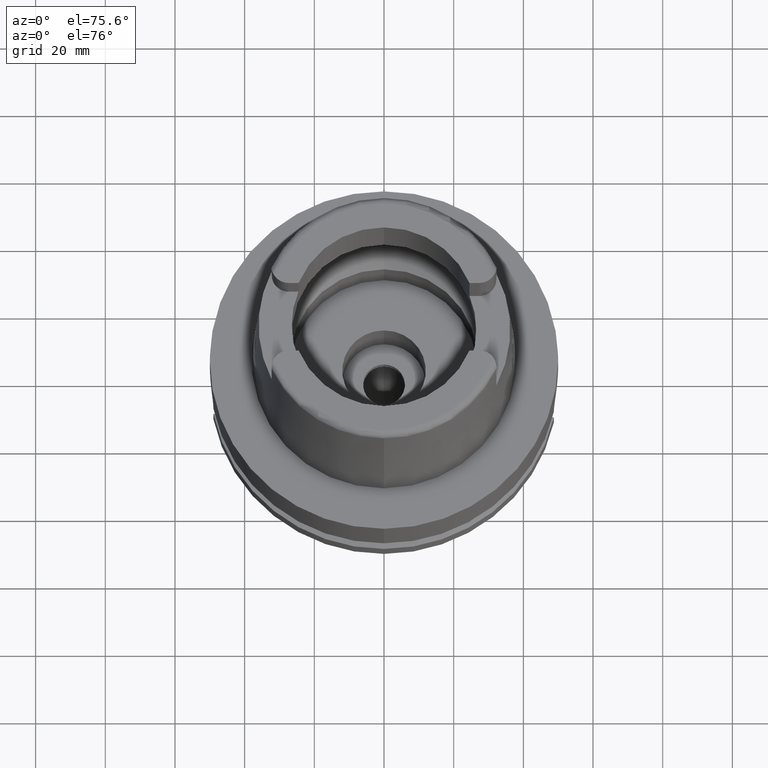
[diagram: clean part render]
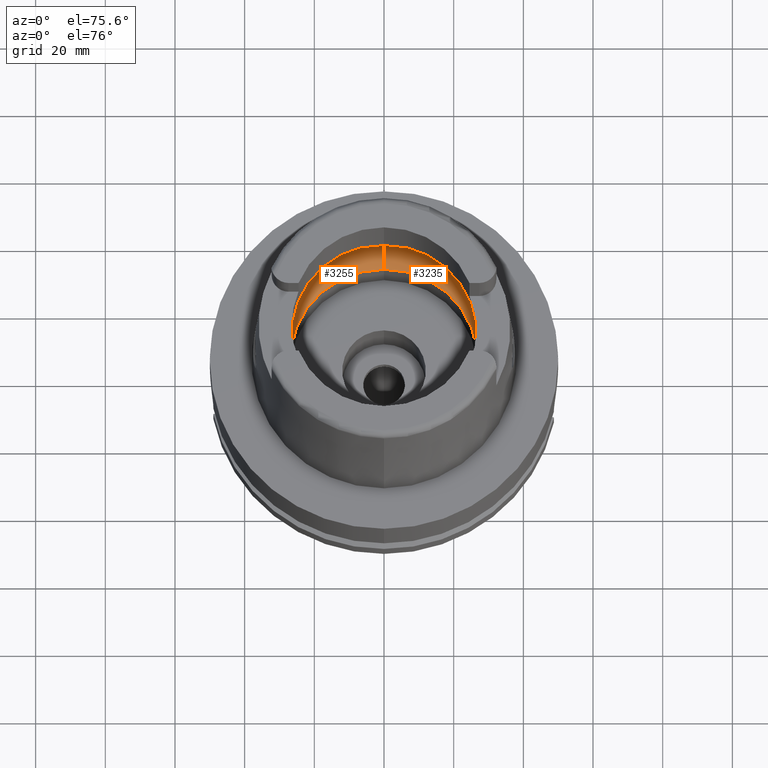
[diagram: same view with one multi-face feature highlighted, each face labeled with its STEP entity id]
A machine part, auxiliary view. The highlighted faces form ONE feature: a constant-radius fillet chain: 2 tangent blend faces with common blend radius 12 mm. The faces share edges in the B-rep.
Their STEP definitions:
[1] entity #3235 (Torus):
#678=CARTESIAN_POINT('',(3.140918884336E1,-2.390158196044E0,9.496624327026E0));
#735=CARTESIAN_POINT('',(3.148971910754E1,0.E0,9.E0));
#736=CARTESIAN_POINT('',(3.148971910754E1,-2.740577972479E-1,9.E0));
#737=CARTESIAN_POINT('',(3.148416873908E1,-8.215758563206E-1,9.037592770478E0));
#738=CARTESIAN_POINT('',(3.145842584810E1,-1.626284014638E0,9.205229300853E0));
#739=CARTESIAN_POINT('',(3.142817037895E1,-2.140720883960E0,9.388291792359E0));
#740=CARTESIAN_POINT('',(3.140918884336E1,-2.390158196044E0,9.496624327026E0));
#745=CARTESIAN_POINT('',(0.E0,1.340946904995E-14,9.496624327026E0));
#746=DIRECTION('',(0.E0,0.E0,-1.E0));
#747=DIRECTION('',(9.971171061384E-1,-7.587803796965E-2,0.E0));
#748=AXIS2_PLACEMENT_3D('',#745,#746,#747);
#753=CARTESIAN_POINT('',(0.E0,1.340946904995E-14,4.993178413034E-2));
#754=DIRECTION('',(0.E0,0.E0,1.E0));
#755=DIRECTION('',(0.E0,-1.E0,0.E0));
#756=AXIS2_PLACEMENT_3D('',#753,#754,#755);
#761=CARTESIAN_POINT('',(0.E0,1.95E1,9.496624327026E0));
#762=DIRECTION('',(1.E0,0.E0,0.E0));
#763=DIRECTION('',(0.E0,6.166666666667E-1,-7.872243785746E-1));
#764=AXIS2_PLACEMENT_3D('',#761,#762,#763);
#769=CARTESIAN_POINT('',(0.E0,1.340946904995E-14,9.496624327026E0));
#770=DIRECTION('',(0.E0,0.E0,-1.E0));
#771=DIRECTION('',(0.E0,1.E0,0.E0));
#772=AXIS2_PLACEMENT_3D('',#769,#770,#771);
#777=CARTESIAN_POINT('',(3.140918884336E1,2.390158196044E0,9.496624327026E0));
#778=CARTESIAN_POINT('',(3.142817011594E1,2.140724340245E0,9.388293293450E0));
#779=CARTESIAN_POINT('',(3.145842551910E1,1.626292447614E0,9.205231383659E0));
#780=CARTESIAN_POINT('',(3.148416888237E1,8.215719155563E-1,9.037591858779E0));
#781=CARTESIAN_POINT('',(3.148971910754E1,2.740560076334E-1,9.E0));
#782=CARTESIAN_POINT('',(3.148971910754E1,0.E0,9.E0));
#823=CARTESIAN_POINT('',(0.E0,-1.95E1,9.496624327026E0));
#824=DIRECTION('',(-1.E0,0.E0,0.E0));
#825=DIRECTION('',(0.E0,-6.166666666667E-1,-7.872243785746E-1));
#826=AXIS2_PLACEMENT_3D('',#823,#824,#825);
#2650=CARTESIAN_POINT('',(0.E0,2.69E1,4.993178413030E-2));
#2651=VERTEX_POINT('',#2650);
#2652=CARTESIAN_POINT('',(0.E0,-2.69E1,4.993178413034E-2));
#2653=VERTEX_POINT('',#2652);
#2657=CARTESIAN_POINT('',(0.E0,3.15E1,9.496624327026E0));
#2658=VERTEX_POINT('',#2657);
#2659=CARTESIAN_POINT('',(0.E0,-3.15E1,9.496624327026E0));
#2660=VERTEX_POINT('',#2659);
#2663=VERTEX_POINT('',#678);
#2664=VERTEX_POINT('',#735);
#2666=VERTEX_POINT('',#777);
#3218=CARTESIAN_POINT('',(0.E0,1.340946904995E-14,9.496624327026E0));
#3219=DIRECTION('',(0.E0,0.E0,-1.E0));
#3220=DIRECTION('',(0.E0,-1.E0,0.E0));
#3221=AXIS2_PLACEMENT_3D('',#3218,#3219,#3220);
#3222=TOROIDAL_SURFACE('',#3221,1.95E1,1.2E1);
#3223=ORIENTED_EDGE('',*,*,#3197,.T.);
#3224=ORIENTED_EDGE('',*,*,#3183,.T.);
#3226=ORIENTED_EDGE('',*,*,#3225,.F.);
#3228=ORIENTED_EDGE('',*,*,#3227,.T.);
#3230=ORIENTED_EDGE('',*,*,#3229,.T.);
#3231=ORIENTED_EDGE('',*,*,#3176,.T.);
#3232=ORIENTED_EDGE('',*,*,#3211,.T.);
#3233=EDGE_LOOP('',(#3223,#3224,#3226,#3228,#3230,#3231,#3232));
#3234=FACE_OUTER_BOUND('',#3233,.F.);
#741=B_SPLINE_CURVE_WITH_KNOTS('',3,(#735,#736,#737,#738,#739,#740),
.UNSPECIFIED.,.F.,.F.,(4,1,1,4),(0.E0,3.333333333333E-1,6.666666666667E-1,1.E0),
.UNSPECIFIED.);
#749=CIRCLE('',#748,3.15E1);
#757=CIRCLE('',#756,2.69E1);
#765=CIRCLE('',#764,1.2E1);
#773=CIRCLE('',#772,3.15E1);
#783=B_SPLINE_CURVE_WITH_KNOTS('',3,(#777,#778,#779,#780,#781,#782),
.UNSPECIFIED.,.F.,.F.,(4,1,1,4),(0.E0,3.333333333333E-1,6.666666666667E-1,1.E0),
.UNSPECIFIED.);
#827=CIRCLE('',#826,1.2E1);
#3176=EDGE_CURVE('',#2658,#2666,#773,.T.);
#3183=EDGE_CURVE('',#2663,#2660,#749,.T.);
#3197=EDGE_CURVE('',#2664,#2663,#741,.T.);
#3211=EDGE_CURVE('',#2666,#2664,#783,.T.);
#3225=EDGE_CURVE('',#2653,#2660,#827,.T.);
#3227=EDGE_CURVE('',#2653,#2651,#757,.T.);
#3229=EDGE_CURVE('',#2651,#2658,#765,.T.);
#3235=ADVANCED_FACE('',(#3234),#3222,.F.);
[2] entity #3255 (Torus):
#761=CARTESIAN_POINT('',(0.E0,1.95E1,9.496624327026E0));
#762=DIRECTION('',(1.E0,0.E0,0.E0));
#763=DIRECTION('',(0.E0,6.166666666667E-1,-7.872243785746E-1));
#764=AXIS2_PLACEMENT_3D('',#761,#762,#763);
#787=CARTESIAN_POINT('',(-3.140918884336E1,-2.390158196044E0,9.496624327026E0));
#788=CARTESIAN_POINT('',(-3.142817042433E1,-2.140720287608E0,9.388291533359E0));
#789=CARTESIAN_POINT('',(-3.145842591615E1,-1.626282554712E0,9.205228870666E0));
#790=CARTESIAN_POINT('',(-3.148416875896E1,-8.215746298374E-1,
9.037592635979E0));
#791=CARTESIAN_POINT('',(-3.148971910754E1,-2.740572723320E-1,9.E0));
#792=CARTESIAN_POINT('',(-3.148971910754E1,0.E0,9.E0));
#797=CARTESIAN_POINT('',(-3.148971910754E1,0.E0,9.E0));
#798=CARTESIAN_POINT('',(-3.148971910754E1,2.740565459395E-1,9.E0));
#799=CARTESIAN_POINT('',(-3.148416886187E1,8.215731729151E-1,9.037591997483E0));
#800=CARTESIAN_POINT('',(-3.145842545026E1,1.626293921866E0,9.205231818757E0));
#801=CARTESIAN_POINT('',(-3.142817007011E1,2.140724942431E0,9.388293554984E0));
#802=CARTESIAN_POINT('',(-3.140918884336E1,2.390158196044E0,9.496624327026E0));
#807=CARTESIAN_POINT('',(0.E0,1.340946904995E-14,9.496624327026E0));
#808=DIRECTION('',(0.E0,0.E0,-1.E0));
#809=DIRECTION('',(-9.971171061384E-1,7.587803796965E-2,0.E0));
#810=AXIS2_PLACEMENT_3D('',#807,#808,#809);
#815=CARTESIAN_POINT('',(0.E0,1.340946904995E-14,4.993178413034E-2));
#816=DIRECTION('',(0.E0,0.E0,1.E0));
#817=DIRECTION('',(0.E0,1.E0,0.E0));
#818=AXIS2_PLACEMENT_3D('',#815,#816,#817);
#823=CARTESIAN_POINT('',(0.E0,-1.95E1,9.496624327026E0));
#824=DIRECTION('',(-1.E0,0.E0,0.E0));
#825=DIRECTION('',(0.E0,-6.166666666667E-1,-7.872243785746E-1));
#826=AXIS2_PLACEMENT_3D('',#823,#824,#825);
#831=CARTESIAN_POINT('',(0.E0,1.340946904995E-14,9.496624327026E0));
#832=DIRECTION('',(0.E0,0.E0,-1.E0));
#833=DIRECTION('',(0.E0,-1.E0,0.E0));
#834=AXIS2_PLACEMENT_3D('',#831,#832,#833);
#2650=CARTESIAN_POINT('',(0.E0,2.69E1,4.993178413030E-2));
#2651=VERTEX_POINT('',#2650);
#2652=CARTESIAN_POINT('',(0.E0,-2.69E1,4.993178413034E-2));
#2653=VERTEX_POINT('',#2652);
#2654=VERTEX_POINT('',#787);
#2655=VERTEX_POINT('',#792);
#2656=VERTEX_POINT('',#802);
#2657=CARTESIAN_POINT('',(0.E0,3.15E1,9.496624327026E0));
#2658=VERTEX_POINT('',#2657);
#2659=CARTESIAN_POINT('',(0.E0,-3.15E1,9.496624327026E0));
#2660=VERTEX_POINT('',#2659);
#3236=CARTESIAN_POINT('',(0.E0,1.340946904995E-14,9.496624327026E0));
#3237=DIRECTION('',(0.E0,0.E0,-1.E0));
#3238=DIRECTION('',(0.E0,-1.E0,0.E0));
#3239=AXIS2_PLACEMENT_3D('',#3236,#3237,#3238);
#3240=TOROIDAL_SURFACE('',#3239,1.95E1,1.2E1);
#3242=ORIENTED_EDGE('',*,*,#3241,.T.);
#3244=ORIENTED_EDGE('',*,*,#3243,.T.);
#3246=ORIENTED_EDGE('',*,*,#3245,.T.);
#3247=ORIENTED_EDGE('',*,*,#3229,.F.);
#3249=ORIENTED_EDGE('',*,*,#3248,.T.);
#3250=ORIENTED_EDGE('',*,*,#3225,.T.);
#3252=ORIENTED_EDGE('',*,*,#3251,.T.);
#3253=EDGE_LOOP('',(#3242,#3244,#3246,#3247,#3249,#3250,#3252));
#3254=FACE_OUTER_BOUND('',#3253,.F.);
#765=CIRCLE('',#764,1.2E1);
#793=B_SPLINE_CURVE_WITH_KNOTS('',3,(#787,#788,#789,#790,#791,#792),
.UNSPECIFIED.,.F.,.F.,(4,1,1,4),(0.E0,3.333333333333E-1,6.666666666667E-1,1.E0),
.UNSPECIFIED.);
#803=B_SPLINE_CURVE_WITH_KNOTS('',3,(#797,#798,#799,#800,#801,#802),
.UNSPECIFIED.,.F.,.F.,(4,1,1,4),(0.E0,3.333333333333E-1,6.666666666667E-1,1.E0),
.UNSPECIFIED.);
#811=CIRCLE('',#810,3.15E1);
#819=CIRCLE('',#818,2.69E1);
#827=CIRCLE('',#826,1.2E1);
#835=CIRCLE('',#834,3.15E1);
#3225=EDGE_CURVE('',#2653,#2660,#827,.T.);
#3229=EDGE_CURVE('',#2651,#2658,#765,.T.);
#3241=EDGE_CURVE('',#2654,#2655,#793,.T.);
#3243=EDGE_CURVE('',#2655,#2656,#803,.T.);
#3245=EDGE_CURVE('',#2656,#2658,#811,.T.);
#3248=EDGE_CURVE('',#2651,#2653,#819,.T.);
#3251=EDGE_CURVE('',#2660,#2654,#835,.T.);
#3255=ADVANCED_FACE('',(#3254),#3240,.F.);